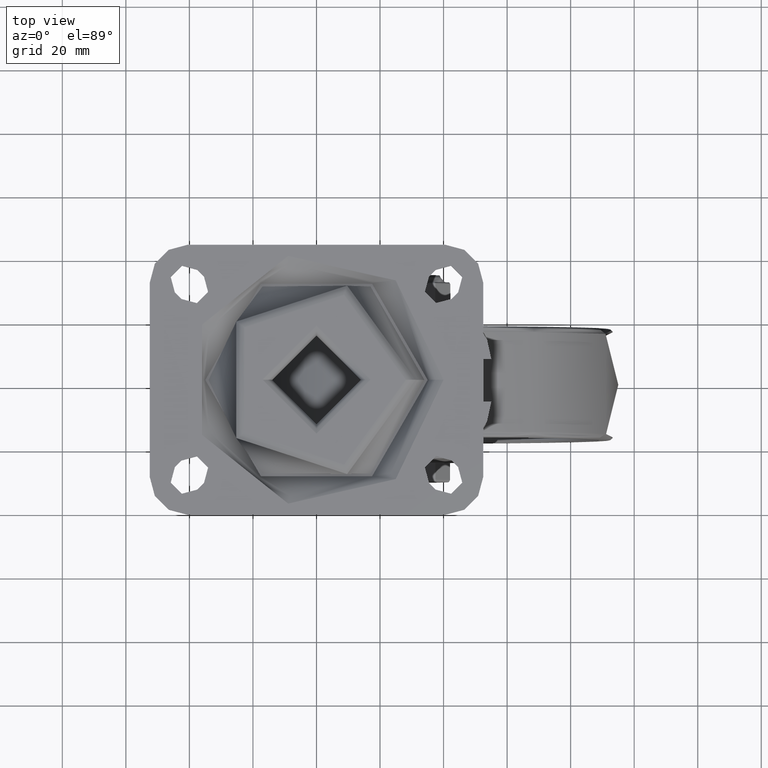
[diagram: clean part render]
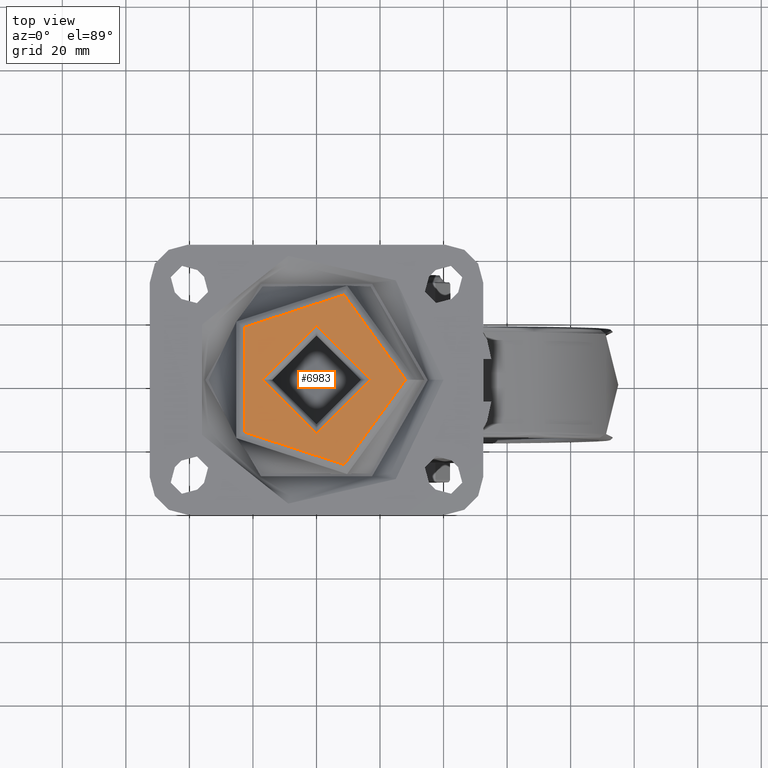
[diagram: same view with one face highlighted and labeled with its STEP entity id]
A machine part, top view. The second image highlights one B-rep face of the part: STEP entity #6983.
In plain terms, the highlighted planar face has unit normal (0, 0, 1).
Its self-contained STEP definition (entity closure, byte-faithful):
#468=FACE_BOUND('',#1181,.T.);
#516=PLANE('',#7585);
#747=FACE_OUTER_BOUND('',#1180,.T.);
#1180=EDGE_LOOP('',(#4858));
#1181=EDGE_LOOP('',(#4859));
#2728=CIRCLE('',#7552,28.0790627287701);
#2733=CIRCLE('',#7560,17.);
#3049=VERTEX_POINT('',#10327);
#3053=VERTEX_POINT('',#10341);
#3713=EDGE_CURVE('',#3049,#3049,#2728,.T.);
#3720=EDGE_CURVE('',#3053,#3053,#2733,.T.);
#4858=ORIENTED_EDGE('',*,*,#3713,.T.);
#4859=ORIENTED_EDGE('',*,*,#3720,.F.);
#6983=ADVANCED_FACE('',(#747,#468),#516,.T.);
#7552=AXIS2_PLACEMENT_3D('',#10329,#8338,#8339);
#7560=AXIS2_PLACEMENT_3D('',#10343,#8356,#8357);
#7585=AXIS2_PLACEMENT_3D('',#10407,#8434,#8435);
#8338=DIRECTION('center_axis',(0.,0.,1.));
#8339=DIRECTION('ref_axis',(1.,0.,0.));
#8356=DIRECTION('center_axis',(0.,0.,1.));
#8357=DIRECTION('ref_axis',(-1.,1.22464679914735E-16,0.));
#8434=DIRECTION('center_axis',(0.,0.,1.));
#8435=DIRECTION('ref_axis',(1.,0.,0.));
#10327=CARTESIAN_POINT('',(28.0790627287701,-3.4386934293846E-15,2.5));
#10329=CARTESIAN_POINT('Origin',(0.,0.,2.5));
#10341=CARTESIAN_POINT('',(-17.,2.0818995585505E-15,2.5));
#10343=CARTESIAN_POINT('Origin',(0.,0.,2.5));
#10407=CARTESIAN_POINT('Origin',(0.,0.,2.5));